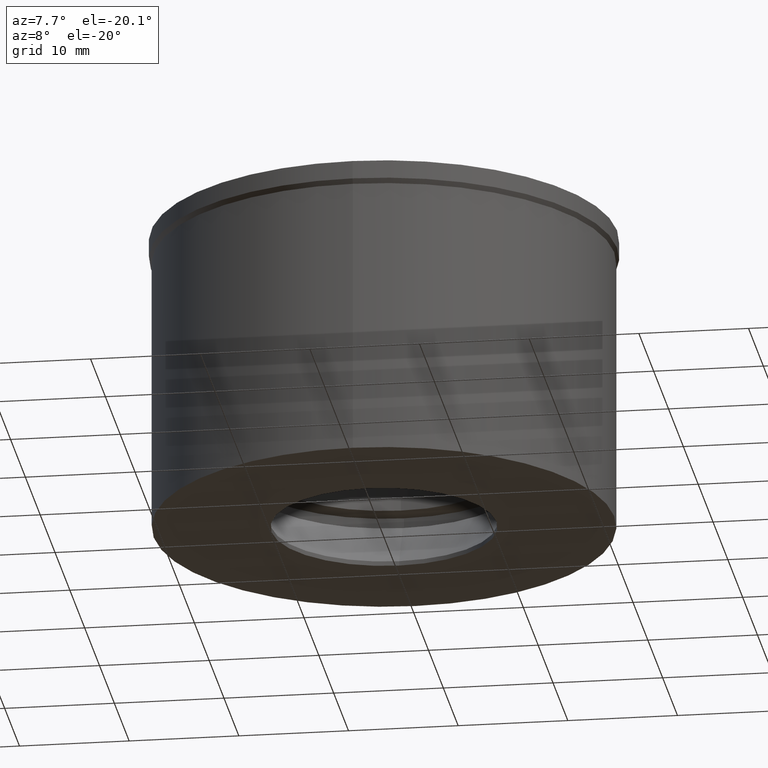
[diagram: clean part render]
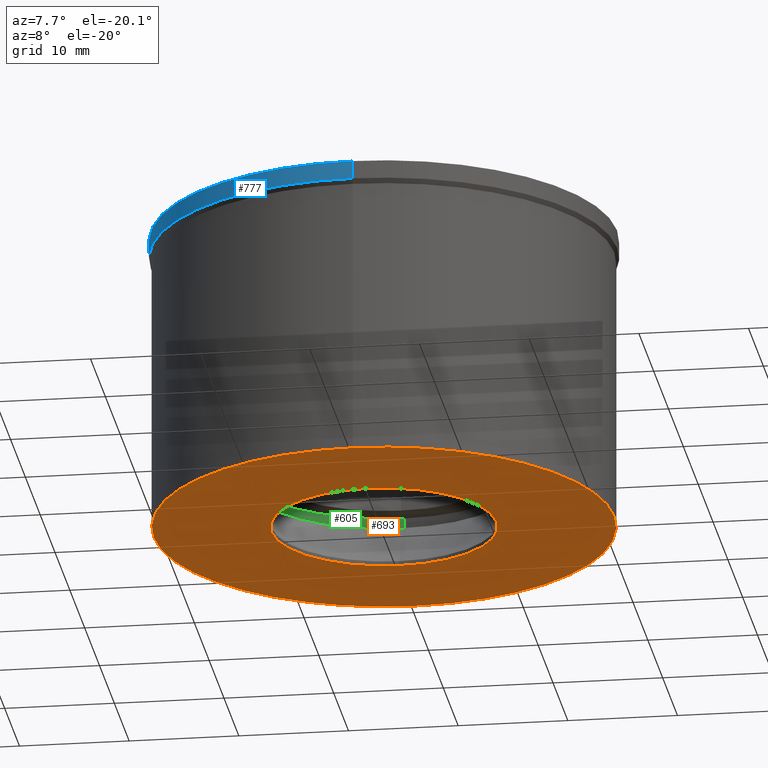
[diagram: same view with three faces highlighted in distinct colors, each labeled with its STEP entity id]
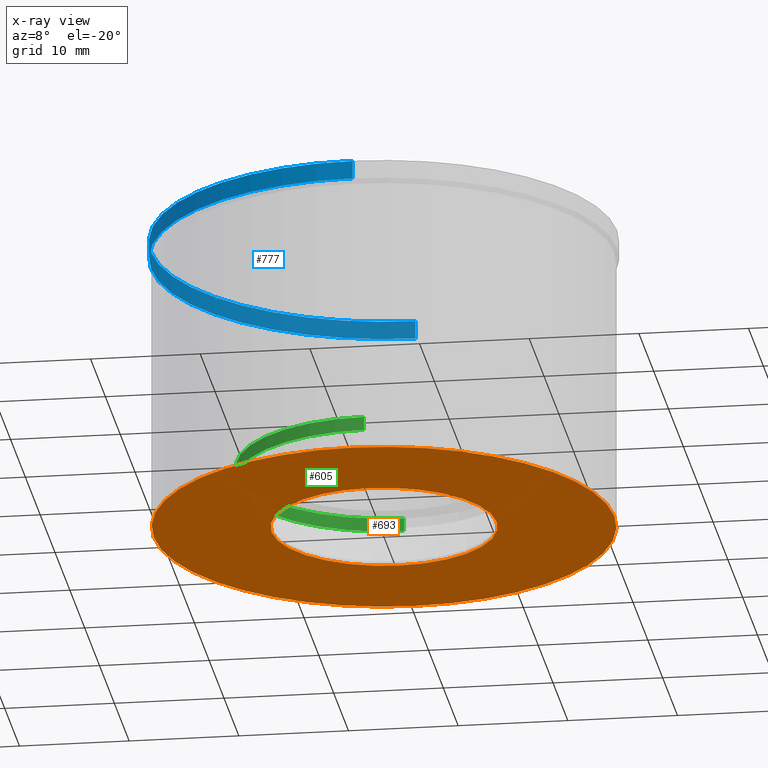
[diagram: x-ray of the same camera — body ghosted, the three highlighted faces saturated]
A machine part, auxiliary view with three faces highlighted in distinct colors.
The next image is the same camera in x-ray (body ghosted, the three faces saturated) — at least one of them is partly hidden behind the body in this view.
Their STEP definitions:

[orange] entity #693 — the highlighted planar face has unit normal (0, 0, -1).
#246=CARTESIAN_POINT('',(0.E0,0.E0,-2.75E1));
#247=DIRECTION('',(0.E0,0.E0,1.E0));
#248=DIRECTION('',(0.E0,-1.E0,0.E0));
#249=AXIS2_PLACEMENT_3D('',#246,#247,#248);
#254=CARTESIAN_POINT('',(0.E0,0.E0,-2.75E1));
#255=DIRECTION('',(0.E0,0.E0,1.E0));
#256=DIRECTION('',(0.E0,1.E0,0.E0));
#257=AXIS2_PLACEMENT_3D('',#254,#255,#256);
#262=CARTESIAN_POINT('',(0.E0,0.E0,-2.75E1));
#263=DIRECTION('',(0.E0,0.E0,-1.E0));
#264=DIRECTION('',(0.E0,-1.E0,0.E0));
#265=AXIS2_PLACEMENT_3D('',#262,#263,#264);
#270=CARTESIAN_POINT('',(0.E0,0.E0,-2.75E1));
#271=DIRECTION('',(0.E0,0.E0,-1.E0));
#272=DIRECTION('',(0.E0,1.E0,0.E0));
#273=AXIS2_PLACEMENT_3D('',#270,#271,#272);
#424=CARTESIAN_POINT('',(0.E0,1.026320106490E1,-2.75E1));
#425=VERTEX_POINT('',#424);
#426=CARTESIAN_POINT('',(0.E0,-1.026320106490E1,-2.75E1));
#427=VERTEX_POINT('',#426);
#428=CARTESIAN_POINT('',(0.E0,-2.1E1,-2.75E1));
#429=CARTESIAN_POINT('',(0.E0,2.1E1,-2.75E1));
#430=VERTEX_POINT('',#428);
#431=VERTEX_POINT('',#429);
#678=CARTESIAN_POINT('',(0.E0,0.E0,-2.75E1));
#679=DIRECTION('',(0.E0,0.E0,-1.E0));
#680=DIRECTION('',(0.E0,-1.E0,0.E0));
#681=AXIS2_PLACEMENT_3D('',#678,#679,#680);
#682=PLANE('',#681);
#684=ORIENTED_EDGE('',*,*,#683,.T.);
#686=ORIENTED_EDGE('',*,*,#685,.T.);
#687=EDGE_LOOP('',(#684,#686));
#688=FACE_OUTER_BOUND('',#687,.F.);
#689=ORIENTED_EDGE('',*,*,#657,.T.);
#690=ORIENTED_EDGE('',*,*,#673,.T.);
#691=EDGE_LOOP('',(#689,#690));
#692=FACE_BOUND('',#691,.F.);
#250=CIRCLE('',#249,2.1E1);
#258=CIRCLE('',#257,2.1E1);
#266=CIRCLE('',#265,1.026320106490E1);
#274=CIRCLE('',#273,1.026320106490E1);
#657=EDGE_CURVE('',#427,#425,#266,.T.);
#673=EDGE_CURVE('',#425,#427,#274,.T.);
#683=EDGE_CURVE('',#430,#431,#250,.T.);
#685=EDGE_CURVE('',#431,#430,#258,.T.);
#693=ADVANCED_FACE('',(#688,#692),#682,.T.);

[blue] entity #777 — the highlighted cylindrical surface (partial cylindrical patch) has radius 21.25 mm, axis along (0, 0, -1).
#292=CARTESIAN_POINT('',(0.E0,0.E0,-1.666987298108E0));
#293=DIRECTION('',(0.E0,0.E0,1.E0));
#294=DIRECTION('',(0.E0,1.E0,0.E0));
#295=AXIS2_PLACEMENT_3D('',#292,#293,#294);
#338=DIRECTION('',(0.E0,-1.278730923565E-14,-1.E0));
#339=VECTOR('',#338,1.666987298108E0);
#340=CARTESIAN_POINT('',(0.E0,2.125E1,0.E0));
#341=LINE('',#340,#339);
#345=DIRECTION('',(0.E0,1.278730923565E-14,-1.E0));
#346=VECTOR('',#345,1.666987298108E0);
#347=CARTESIAN_POINT('',(0.E0,-2.125E1,0.E0));
#348=LINE('',#347,#346);
#352=CARTESIAN_POINT('',(0.E0,0.E0,0.E0));
#353=DIRECTION('',(0.E0,0.E0,-1.E0));
#354=DIRECTION('',(0.E0,-1.E0,0.E0));
#355=AXIS2_PLACEMENT_3D('',#352,#353,#354);
#436=CARTESIAN_POINT('',(0.E0,2.125E1,-1.666987298108E0));
#437=VERTEX_POINT('',#436);
#438=CARTESIAN_POINT('',(0.E0,-2.125E1,-1.666987298108E0));
#439=VERTEX_POINT('',#438);
#440=CARTESIAN_POINT('',(0.E0,2.125E1,0.E0));
#441=VERTEX_POINT('',#440);
#442=CARTESIAN_POINT('',(0.E0,-2.125E1,0.E0));
#443=VERTEX_POINT('',#442);
#765=CARTESIAN_POINT('',(0.E0,0.E0,1.375E0));
#766=DIRECTION('',(0.E0,0.E0,-1.E0));
#767=DIRECTION('',(0.E0,-1.E0,0.E0));
#768=AXIS2_PLACEMENT_3D('',#765,#766,#767);
#769=CYLINDRICAL_SURFACE('',#768,2.125E1);
#770=ORIENTED_EDGE('',*,*,#755,.F.);
#772=ORIENTED_EDGE('',*,*,#771,.F.);
#773=ORIENTED_EDGE('',*,*,#758,.T.);
#774=ORIENTED_EDGE('',*,*,#729,.F.);
#775=EDGE_LOOP('',(#770,#772,#773,#774));
#776=FACE_OUTER_BOUND('',#775,.F.);
#296=CIRCLE('',#295,2.125E1);
#356=CIRCLE('',#355,2.125E1);
#729=EDGE_CURVE('',#437,#439,#296,.T.);
#755=EDGE_CURVE('',#441,#437,#341,.T.);
#758=EDGE_CURVE('',#443,#439,#348,.T.);
#771=EDGE_CURVE('',#443,#441,#356,.T.);
#777=ADVANCED_FACE('',(#776),#769,.T.);

[green] entity #605 — the highlighted cylindrical surface (partial cylindrical patch) has radius 13.45 mm, axis along (0, 0, -1).
#132=CARTESIAN_POINT('',(0.E0,0.E0,-2.18E1));
#133=DIRECTION('',(0.E0,0.E0,1.E0));
#134=DIRECTION('',(0.E0,1.E0,0.E0));
#135=AXIS2_PLACEMENT_3D('',#132,#133,#134);
#156=DIRECTION('',(0.E0,0.E0,1.E0));
#157=VECTOR('',#156,1.25E0);
#158=CARTESIAN_POINT('',(0.E0,1.345E1,-2.305E1));
#159=LINE('',#158,#157);
#163=DIRECTION('',(0.E0,0.E0,1.E0));
#164=VECTOR('',#163,1.25E0);
#165=CARTESIAN_POINT('',(0.E0,-1.345E1,-2.305E1));
#166=LINE('',#165,#164);
#170=CARTESIAN_POINT('',(0.E0,0.E0,-2.305E1));
#171=DIRECTION('',(0.E0,0.E0,-1.E0));
#172=DIRECTION('',(0.E0,-1.E0,0.E0));
#173=AXIS2_PLACEMENT_3D('',#170,#171,#172);
#408=CARTESIAN_POINT('',(0.E0,-1.345E1,-2.18E1));
#409=CARTESIAN_POINT('',(0.E0,1.345E1,-2.18E1));
#410=VERTEX_POINT('',#408);
#411=VERTEX_POINT('',#409);
#412=CARTESIAN_POINT('',(0.E0,1.345E1,-2.305E1));
#413=VERTEX_POINT('',#412);
#414=CARTESIAN_POINT('',(0.E0,-1.345E1,-2.305E1));
#415=VERTEX_POINT('',#414);
#593=CARTESIAN_POINT('',(0.E0,0.E0,1.375E0));
#594=DIRECTION('',(0.E0,0.E0,-1.E0));
#595=DIRECTION('',(0.E0,-1.E0,0.E0));
#596=AXIS2_PLACEMENT_3D('',#593,#594,#595);
#597=CYLINDRICAL_SURFACE('',#596,1.345E1);
#598=ORIENTED_EDGE('',*,*,#583,.F.);
#600=ORIENTED_EDGE('',*,*,#599,.F.);
#601=ORIENTED_EDGE('',*,*,#586,.T.);
#602=ORIENTED_EDGE('',*,*,#569,.F.);
#603=EDGE_LOOP('',(#598,#600,#601,#602));
#604=FACE_OUTER_BOUND('',#603,.F.);
#136=CIRCLE('',#135,1.345E1);
#174=CIRCLE('',#173,1.345E1);
#569=EDGE_CURVE('',#411,#410,#136,.T.);
#583=EDGE_CURVE('',#413,#411,#159,.T.);
#586=EDGE_CURVE('',#415,#410,#166,.T.);
#599=EDGE_CURVE('',#415,#413,#174,.T.);
#605=ADVANCED_FACE('',(#604),#597,.F.);